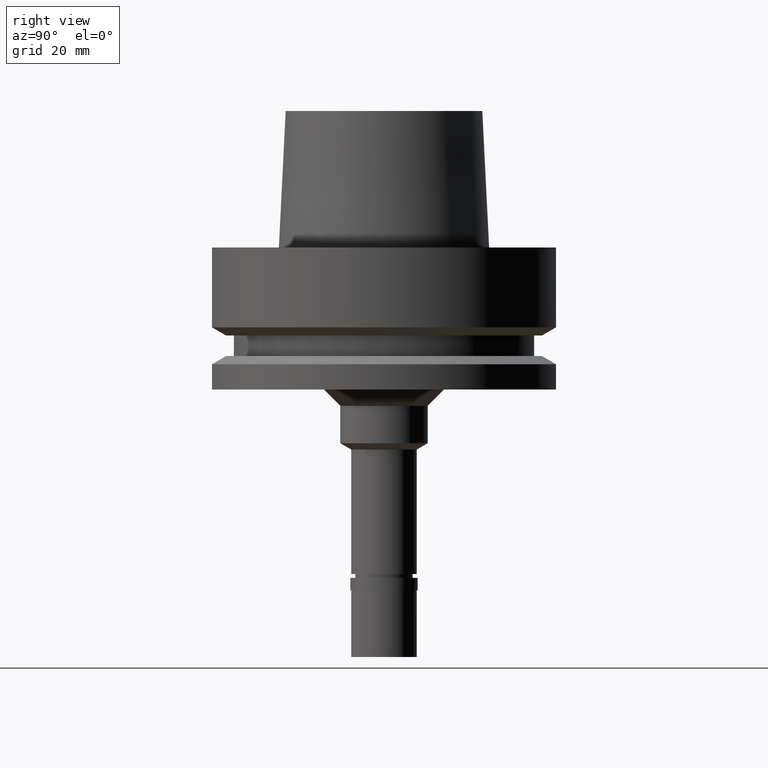
[diagram: clean part render]
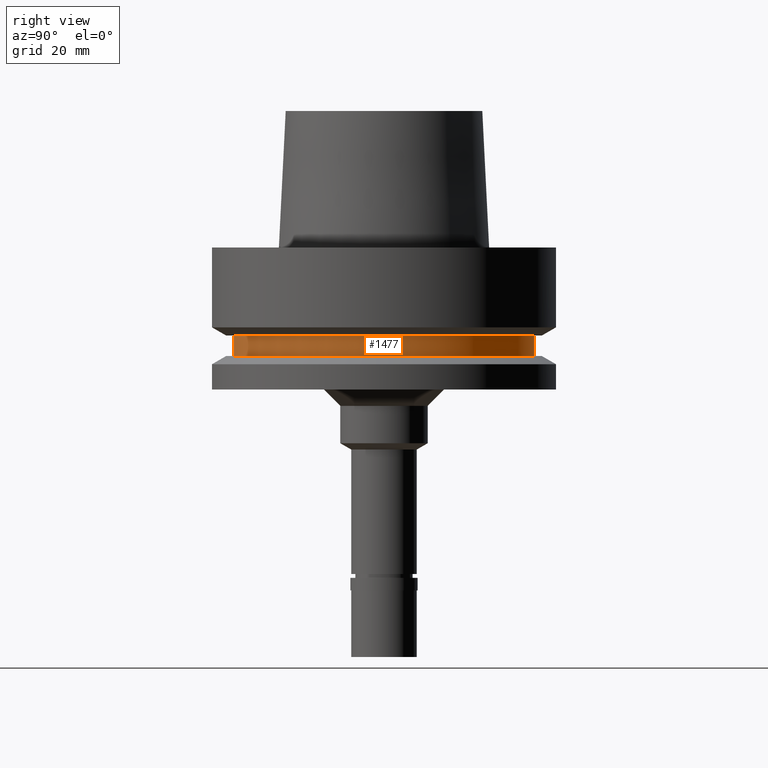
[diagram: same view with one face highlighted and labeled with its STEP entity id]
A machine part, right view. The second image highlights one B-rep face of the part: STEP entity #1477.
In plain terms, the highlighted cylindrical surface (partial cylindrical patch) has radius 27.5 mm, axis along (0, 0, 1).
Its self-contained STEP definition (entity closure, byte-faithful):
#55 = DIRECTION ( 'NONE',  ( 0.0000000000000000000, -1.000000000000000000, 0.0000000000000000000 ) ) ;
#119 = AXIS2_PLACEMENT_3D ( 'NONE', #874, #1714, #1238 ) ;
#162 = ORIENTED_EDGE ( 'NONE', *, *, #1082, .T. ) ;
#191 = LINE ( 'NONE', #466, #1211 ) ;
#221 = VERTEX_POINT ( 'NONE', #1004 ) ;
#279 = EDGE_CURVE ( 'NONE', #1710, #221, #191, .T. ) ;
#290 = DIRECTION ( 'NONE',  ( 0.0000000000000000000, 0.0000000000000000000, 1.000000000000000000 ) ) ;
#312 = AXIS2_PLACEMENT_3D ( 'NONE', #1346, #2200, #2182 ) ;
#466 = CARTESIAN_POINT ( 'NONE',  ( 0.0000000000000000000, -27.50000000000000000, -16.12500000000000000 ) ) ;
#677 = CIRCLE ( 'NONE', #312, 27.50000000000000000 ) ;
#874 = CARTESIAN_POINT ( 'NONE',  ( 0.0000000000000000000, 0.0000000000000000000, -75.80000000000001137 ) ) ;
#898 = DIRECTION ( 'NONE',  ( 0.0000000000000000000, 0.0000000000000000000, -1.000000000000000000 ) ) ;
#1004 = CARTESIAN_POINT ( 'NONE',  ( 0.0000000000000000000, -27.50000000000000000, -19.87500000000000000 ) ) ;
#1082 = EDGE_CURVE ( 'NONE', #221, #1349, #1168, .T. ) ;
#1132 = VECTOR ( 'NONE', #2370, 1000.000000000000000 ) ;
#1168 = CIRCLE ( 'NONE', #2734, 27.50000000000000000 ) ;
#1211 = VECTOR ( 'NONE', #898, 1000.000000000000000 ) ;
#1238 = DIRECTION ( 'NONE',  ( 0.0000000000000000000, 1.000000000000000000, 0.0000000000000000000 ) ) ;
#1346 = CARTESIAN_POINT ( 'NONE',  ( 0.0000000000000000000, 0.0000000000000000000, -16.12500000000000000 ) ) ;
#1349 = VERTEX_POINT ( 'NONE', #1490 ) ;
#1411 = CARTESIAN_POINT ( 'NONE',  ( 0.0000000000000000000, 27.50000000000000000, -16.12500000000000000 ) ) ;
#1453 = ORIENTED_EDGE ( 'NONE', *, *, #279, .T. ) ;
#1477 = ADVANCED_FACE ( 'NONE', ( #2757 ), #1910, .T. ) ;
#1490 = CARTESIAN_POINT ( 'NONE',  ( 0.0000000000000000000, 27.50000000000000000, -19.87500000000000000 ) ) ;
#1517 = LINE ( 'NONE', #1725, #1132 ) ;
#1567 = CARTESIAN_POINT ( 'NONE',  ( 0.0000000000000000000, 0.0000000000000000000, -19.87500000000000000 ) ) ;
#1710 = VERTEX_POINT ( 'NONE', #2032 ) ;
#1714 = DIRECTION ( 'NONE',  ( 0.0000000000000000000, 0.0000000000000000000, 1.000000000000000000 ) ) ;
#1725 = CARTESIAN_POINT ( 'NONE',  ( 0.0000000000000000000, 27.50000000000000000, -16.12500000000000000 ) ) ;
#1798 = VERTEX_POINT ( 'NONE', #1411 ) ;
#1910 = CYLINDRICAL_SURFACE ( 'NONE', #119, 27.50000000000000000 ) ;
#2032 = CARTESIAN_POINT ( 'NONE',  ( 0.0000000000000000000, -27.50000000000000000, -16.12500000000000000 ) ) ;
#2038 = ORIENTED_EDGE ( 'NONE', *, *, #2082, .F. ) ;
#2082 = EDGE_CURVE ( 'NONE', #1798, #1349, #1517, .T. ) ;
#2090 = ORIENTED_EDGE ( 'NONE', *, *, #2261, .T. ) ;
#2182 = DIRECTION ( 'NONE',  ( 0.0000000000000000000, 1.000000000000000000, 0.0000000000000000000 ) ) ;
#2200 = DIRECTION ( 'NONE',  ( 0.0000000000000000000, 0.0000000000000000000, -1.000000000000000000 ) ) ;
#2261 = EDGE_CURVE ( 'NONE', #1798, #1710, #677, .T. ) ;
#2370 = DIRECTION ( 'NONE',  ( 0.0000000000000000000, 0.0000000000000000000, -1.000000000000000000 ) ) ;
#2633 = EDGE_LOOP ( 'NONE', ( #2090, #1453, #162, #2038 ) ) ;
#2734 = AXIS2_PLACEMENT_3D ( 'NONE', #1567, #290, #55 ) ;
#2757 = FACE_OUTER_BOUND ( 'NONE', #2633, .T. ) ;